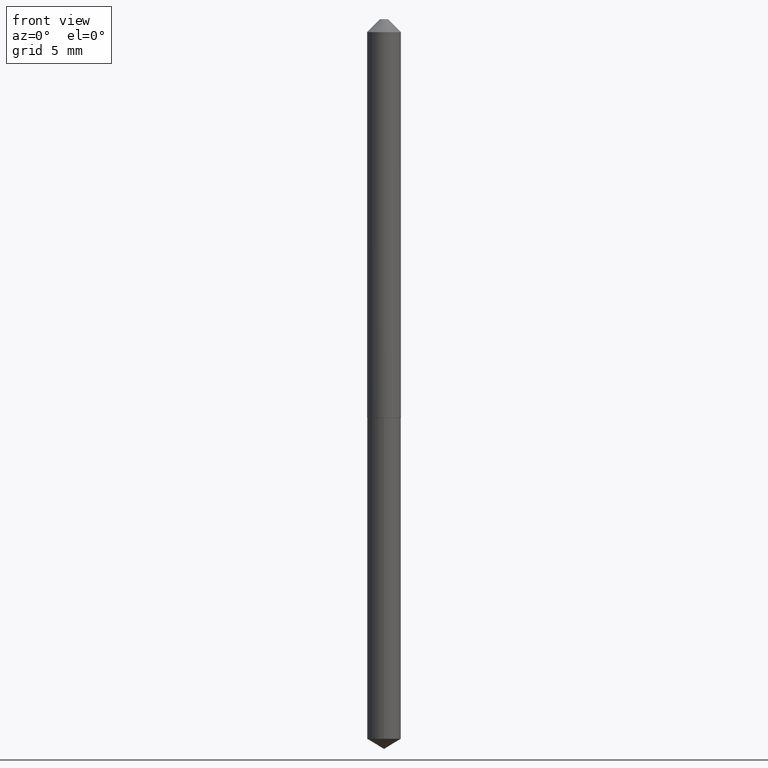
[diagram: clean part render]
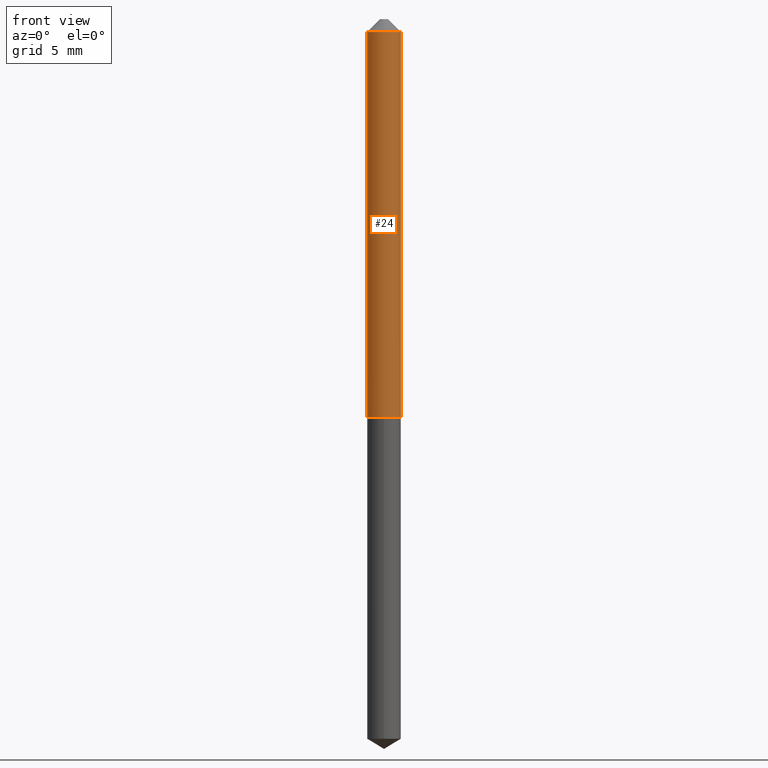
[diagram: same view with one face highlighted and labeled with its STEP entity id]
A machine part, front view. The second image highlights one B-rep face of the part: STEP entity #24.
In plain terms, the highlighted cylindrical surface (edge-blend (fillet) strip) has radius 1.0287 mm, axis along (-0, 0, 1).
Its self-contained STEP definition (entity closure, byte-faithful):
#3 = EDGE_CURVE ( 'NONE', #41, #15, #386, .T. ) ;
#15 = VERTEX_POINT ( 'NONE', #181 ) ;
#24 = ADVANCED_FACE ( 'NONE', ( #303 ), #216, .T. ) ;
#41 = VERTEX_POINT ( 'NONE', #240 ) ;
#47 = DIRECTION ( 'NONE',  ( 1.000000000000000000, -6.982962677686264344E-15, 0.000000000000000000 ) ) ;
#75 = AXIS2_PLACEMENT_3D ( 'NONE', #331, #239, #217 ) ;
#84 = DIRECTION ( 'NONE',  ( 1.000000000000000000, -6.982962677686265922E-15, 4.876176775795934672E-29 ) ) ;
#85 = LINE ( 'NONE', #145, #128 ) ;
#110 = EDGE_LOOP ( 'NONE', ( #184, #369, #169, #134 ) ) ;
#114 = DIRECTION ( 'NONE',  ( -2.445468806185136877E-29, 3.491481338843145188E-15, 1.000000000000000000 ) ) ;
#128 = VECTOR ( 'NONE', #114, 39.37007874015748143 ) ;
#134 = ORIENTED_EDGE ( 'NONE', *, *, #232, .F. ) ;
#141 = CIRCLE ( 'NONE', #389, 0.04050000000000011924 ) ;
#145 = CARTESIAN_POINT ( 'NONE',  ( 0.04050000000000007067, -2.828099884462942771E-16, 1.974851594197357093E-30 ) ) ;
#154 = DIRECTION ( 'NONE',  ( -2.445468806185136877E-29, 3.491481338843145188E-15, 1.000000000000000000 ) ) ;
#169 = ORIENTED_EDGE ( 'NONE', *, *, #357, .T. ) ;
#181 = CARTESIAN_POINT ( 'NONE',  ( -0.04050000000000000822, -1.434839797568894869E-15, -0.03125000000000020817 ) ) ;
#184 = ORIENTED_EDGE ( 'NONE', *, *, #3, .F. ) ;
#205 = DIRECTION ( 'NONE',  ( -2.445468806185136597E-29, 3.491481338843145583E-15, 1.000000000000000000 ) ) ;
#216 = CYLINDRICAL_SURFACE ( 'NONE', #322, 0.04050000000000007067 ) ;
#217 = DIRECTION ( 'NONE',  ( 1.000000000000000000, -6.982962677686267499E-15, 0.000000000000000000 ) ) ;
#232 = EDGE_CURVE ( 'NONE', #15, #339, #372, .T. ) ;
#239 = DIRECTION ( 'NONE',  ( -2.445468806185136597E-29, 3.491481338843145583E-15, 1.000000000000000000 ) ) ;
#240 = CARTESIAN_POINT ( 'NONE',  ( -0.04050000000000011924, -3.048340611281783834E-15, -0.9554999999999997939 ) ) ;
#245 = CARTESIAN_POINT ( 'NONE',  ( -0.04050000000000007067, 2.877698079828410774E-16, -1.992168711553240552E-30 ) ) ;
#254 = VERTEX_POINT ( 'NONE', #387 ) ;
#265 = CARTESIAN_POINT ( 'NONE',  ( 0.04050000000000000822, -3.919187802851428847E-16, -0.03125000000000020817 ) ) ;
#281 = EDGE_CURVE ( 'NONE', #41, #254, #141, .T. ) ;
#303 = FACE_OUTER_BOUND ( 'NONE', #110, .T. ) ;
#322 = AXIS2_PLACEMENT_3D ( 'NONE', #332, #382, #84 ) ;
#328 = CARTESIAN_POINT ( 'NONE',  ( 2.336645444309897725E-29, -3.336110419264625060E-15, -0.9554999999999997939 ) ) ;
#331 = CARTESIAN_POINT ( 'NONE',  ( 7.642090019328602662E-31, -1.091087918388490267E-16, -0.03125000000000020817 ) ) ;
#332 = CARTESIAN_POINT ( 'NONE',  ( 0.000000000000000000, 0.000000000000000000, 0.000000000000000000 ) ) ;
#337 = VECTOR ( 'NONE', #154, 39.37007874015748143 ) ;
#339 = VERTEX_POINT ( 'NONE', #265 ) ;
#357 = EDGE_CURVE ( 'NONE', #254, #339, #85, .T. ) ;
#369 = ORIENTED_EDGE ( 'NONE', *, *, #281, .T. ) ;
#372 = CIRCLE ( 'NONE', #75, 0.04050000000000000822 ) ;
#382 = DIRECTION ( 'NONE',  ( -2.445468806185136597E-29, 3.491481338843145583E-15, 1.000000000000000000 ) ) ;
#386 = LINE ( 'NONE', #245, #337 ) ;
#387 = CARTESIAN_POINT ( 'NONE',  ( 0.04050000000000011924, -3.618920407710919682E-15, -0.9554999999999997939 ) ) ;
#389 = AXIS2_PLACEMENT_3D ( 'NONE', #328, #205, #47 ) ;